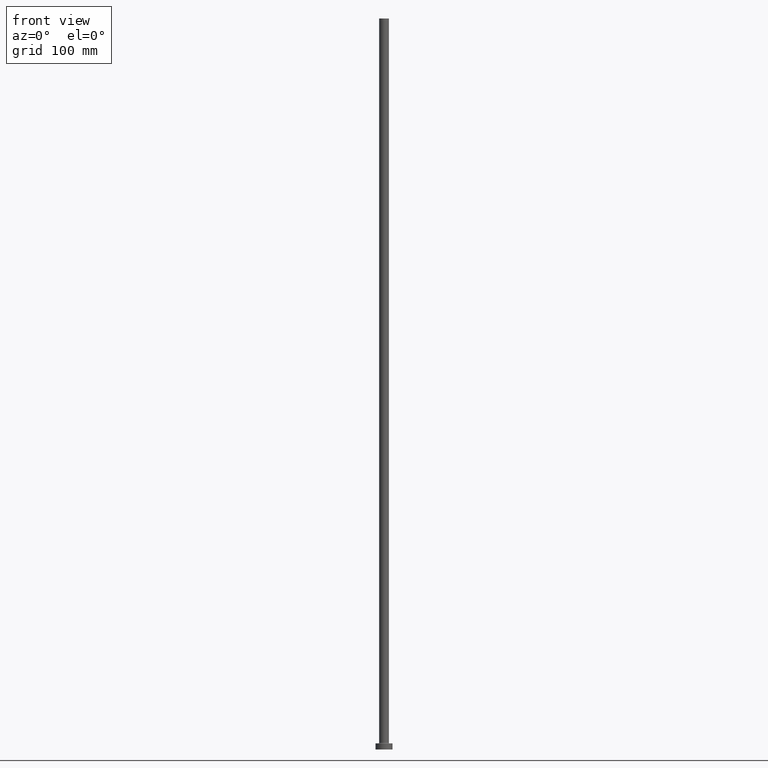
[diagram: clean part render]
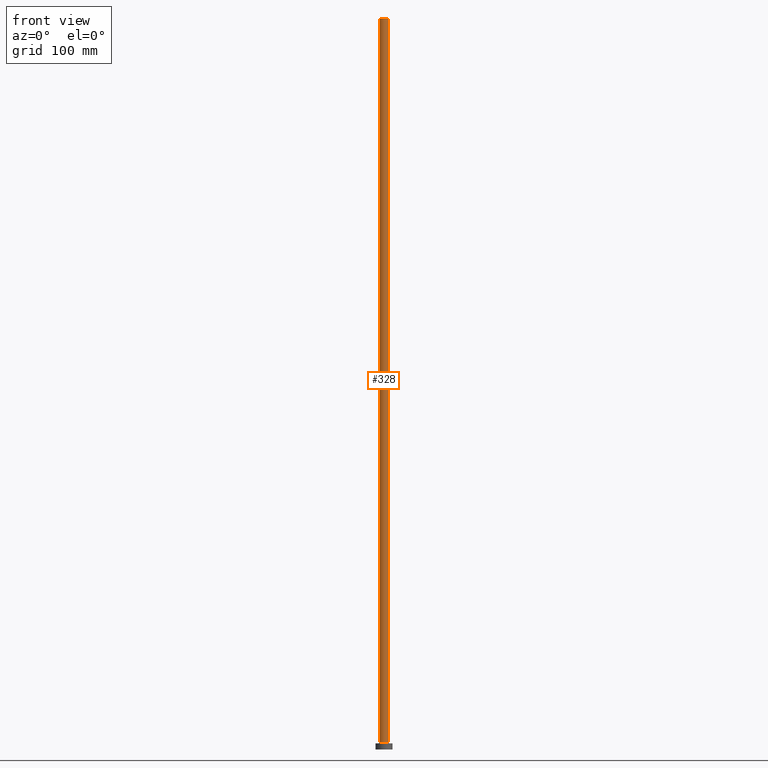
[diagram: same view with one face highlighted and labeled with its STEP entity id]
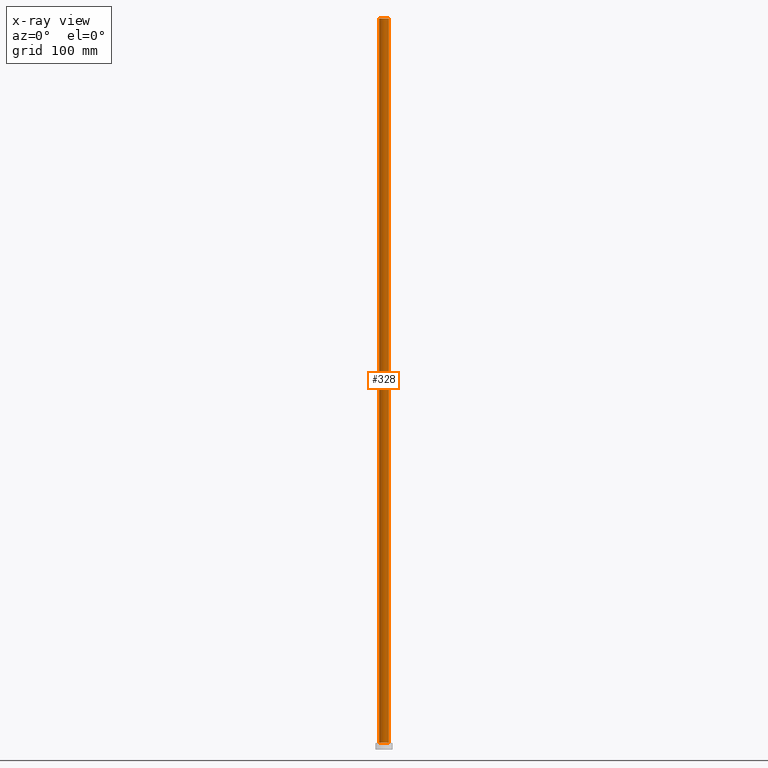
[diagram: x-ray of the same camera — body ghosted, the highlighted face saturated]
A machine part, front view. The second image highlights one B-rep face of the part: STEP entity #328.
The next image is the same camera in x-ray: the body ghosted, the highlighted face saturated — about 0% of this face is hidden behind the body in this view.
In plain terms, the highlighted cylindrical surface (edge-blend (fillet) strip) has radius 4 mm, axis along (-0, -0, -1).
Its self-contained STEP definition (entity closure, byte-faithful):
#24 = DIRECTION ( 'NONE',  ( 1.000000000000000000, 0.000000000000000000, 0.000000000000000000 ) ) ;
#26 = EDGE_CURVE ( 'NONE', #74, #346, #166, .T. ) ;
#29 = AXIS2_PLACEMENT_3D ( 'NONE', #413, #439, #24 ) ;
#50 = EDGE_CURVE ( 'NONE', #445, #346, #316, .T. ) ;
#58 = ORIENTED_EDGE ( 'NONE', *, *, #394, .F. ) ;
#69 = ORIENTED_EDGE ( 'NONE', *, *, #50, .T. ) ;
#71 = AXIS2_PLACEMENT_3D ( 'NONE', #461, #242, #212 ) ;
#74 = VERTEX_POINT ( 'NONE', #382 ) ;
#81 = DIRECTION ( 'NONE',  ( -0.000000000000000000, -0.000000000000000000, -1.000000000000000000 ) ) ;
#86 = LINE ( 'NONE', #441, #425 ) ;
#127 = DIRECTION ( 'NONE',  ( -0.000000000000000000, -0.000000000000000000, -1.000000000000000000 ) ) ;
#152 = VERTEX_POINT ( 'NONE', #263 ) ;
#166 = LINE ( 'NONE', #195, #398 ) ;
#191 = ORIENTED_EDGE ( 'NONE', *, *, #376, .T. ) ;
#193 = FACE_OUTER_BOUND ( 'NONE', #448, .T. ) ;
#195 = CARTESIAN_POINT ( 'NONE',  ( 4.000000000000000000, 4.898587196589412829E-16, 600.0000000000000000 ) ) ;
#212 = DIRECTION ( 'NONE',  ( 1.000000000000000000, 0.000000000000000000, 0.000000000000000000 ) ) ;
#224 = CIRCLE ( 'NONE', #29, 4.000000000000000000 ) ;
#227 = DIRECTION ( 'NONE',  ( -1.000000000000000000, 0.000000000000000000, 0.000000000000000000 ) ) ;
#242 = DIRECTION ( 'NONE',  ( 0.000000000000000000, 0.000000000000000000, 1.000000000000000000 ) ) ;
#263 = CARTESIAN_POINT ( 'NONE',  ( -4.000000000000000000, 0.000000000000000000, 600.0000000000000000 ) ) ;
#301 = DIRECTION ( 'NONE',  ( -0.000000000000000000, -0.000000000000000000, -1.000000000000000000 ) ) ;
#316 = CIRCLE ( 'NONE', #71, 4.000000000000000000 ) ;
#328 = ADVANCED_FACE ( 'NONE', ( #193 ), #348, .T. ) ;
#339 = CARTESIAN_POINT ( 'NONE',  ( 4.000000000000000000, 4.898587196589412829E-16, 5.499999999999949374 ) ) ;
#346 = VERTEX_POINT ( 'NONE', #339 ) ;
#347 = CARTESIAN_POINT ( 'NONE',  ( 0.000000000000000000, 0.000000000000000000, 600.0000000000000000 ) ) ;
#348 = CYLINDRICAL_SURFACE ( 'NONE', #379, 4.000000000000000000 ) ;
#376 = EDGE_CURVE ( 'NONE', #152, #445, #86, .T. ) ;
#379 = AXIS2_PLACEMENT_3D ( 'NONE', #347, #81, #227 ) ;
#382 = CARTESIAN_POINT ( 'NONE',  ( 4.000000000000000000, 4.898587196589412829E-16, 600.0000000000000000 ) ) ;
#394 = EDGE_CURVE ( 'NONE', #152, #74, #224, .T. ) ;
#398 = VECTOR ( 'NONE', #127, 1000.000000000000000 ) ;
#409 = CARTESIAN_POINT ( 'NONE',  ( -4.000000000000000000, 0.000000000000000000, 5.499999999999949374 ) ) ;
#413 = CARTESIAN_POINT ( 'NONE',  ( 0.000000000000000000, 0.000000000000000000, 600.0000000000000000 ) ) ;
#424 = ORIENTED_EDGE ( 'NONE', *, *, #26, .F. ) ;
#425 = VECTOR ( 'NONE', #301, 1000.000000000000000 ) ;
#439 = DIRECTION ( 'NONE',  ( 0.000000000000000000, 0.000000000000000000, 1.000000000000000000 ) ) ;
#441 = CARTESIAN_POINT ( 'NONE',  ( -4.000000000000000000, 0.000000000000000000, 600.0000000000000000 ) ) ;
#445 = VERTEX_POINT ( 'NONE', #409 ) ;
#448 = EDGE_LOOP ( 'NONE', ( #424, #58, #191, #69 ) ) ;
#461 = CARTESIAN_POINT ( 'NONE',  ( 0.000000000000000000, 0.000000000000000000, 5.499999999999949374 ) ) ;